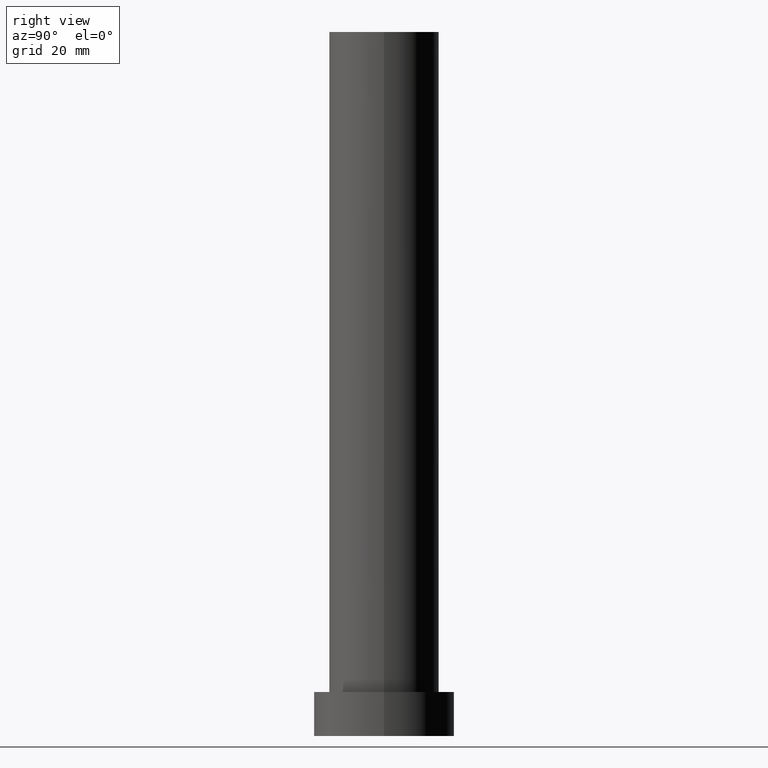
[diagram: clean part render]
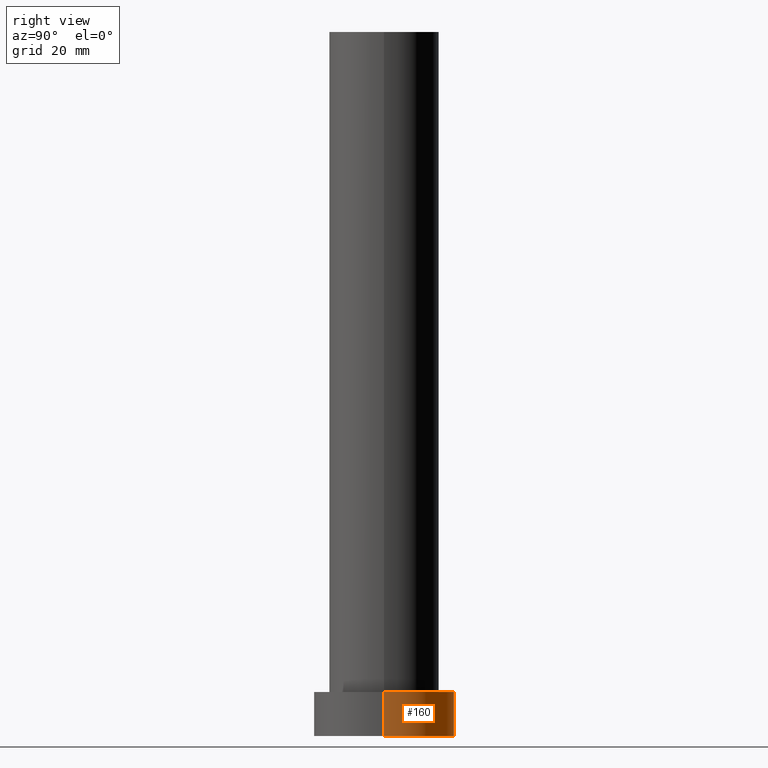
[diagram: same view with one face highlighted and labeled with its STEP entity id]
A machine part, right view. The second image highlights one B-rep face of the part: STEP entity #160.
In plain terms, the highlighted cylindrical surface (partial cylindrical patch) has radius 16 mm, axis along (-0, -0, -1).
Its self-contained STEP definition (entity closure, byte-faithful):
#17 = ORIENTED_EDGE ( 'NONE', *, *, #103, .T. ) ;
#20 = CARTESIAN_POINT ( 'NONE',  ( -16.00000000000000000, 0.000000000000000000, 0.000000000000000000 ) ) ;
#22 = EDGE_CURVE ( 'NONE', #247, #222, #238, .T. ) ;
#24 = CARTESIAN_POINT ( 'NONE',  ( 0.000000000000000000, 0.000000000000000000, 10.00000000000000000 ) ) ;
#25 = LINE ( 'NONE', #175, #108 ) ;
#40 = DIRECTION ( 'NONE',  ( -0.000000000000000000, -0.000000000000000000, -1.000000000000000000 ) ) ;
#56 = EDGE_LOOP ( 'NONE', ( #113, #17, #223, #100 ) ) ;
#59 = AXIS2_PLACEMENT_3D ( 'NONE', #24, #106, #231 ) ;
#65 = LINE ( 'NONE', #194, #214 ) ;
#67 = DIRECTION ( 'NONE',  ( 1.000000000000000000, 0.000000000000000000, 0.000000000000000000 ) ) ;
#68 = CARTESIAN_POINT ( 'NONE',  ( 0.000000000000000000, 0.000000000000000000, 0.000000000000000000 ) ) ;
#79 = DIRECTION ( 'NONE',  ( -0.000000000000000000, -0.000000000000000000, -1.000000000000000000 ) ) ;
#100 = ORIENTED_EDGE ( 'NONE', *, *, #236, .F. ) ;
#103 = EDGE_CURVE ( 'NONE', #247, #219, #65, .T. ) ;
#106 = DIRECTION ( 'NONE',  ( -0.000000000000000000, -0.000000000000000000, -1.000000000000000000 ) ) ;
#108 = VECTOR ( 'NONE', #79, 1000.000000000000000 ) ;
#113 = ORIENTED_EDGE ( 'NONE', *, *, #22, .F. ) ;
#129 = VERTEX_POINT ( 'NONE', #20 ) ;
#136 = DIRECTION ( 'NONE',  ( 0.000000000000000000, 0.000000000000000000, 1.000000000000000000 ) ) ;
#142 = CARTESIAN_POINT ( 'NONE',  ( -16.00000000000000000, 0.000000000000000000, 10.00000000000000000 ) ) ;
#143 = AXIS2_PLACEMENT_3D ( 'NONE', #68, #136, #67 ) ;
#150 = DIRECTION ( 'NONE',  ( 1.000000000000000000, 0.000000000000000000, 0.000000000000000000 ) ) ;
#156 = CARTESIAN_POINT ( 'NONE',  ( 16.00000000000000000, 1.959434878635765131E-15, 10.00000000000000000 ) ) ;
#160 = ADVANCED_FACE ( 'NONE', ( #197 ), #232, .T. ) ;
#167 = CARTESIAN_POINT ( 'NONE',  ( 0.000000000000000000, 0.000000000000000000, 10.00000000000000000 ) ) ;
#175 = CARTESIAN_POINT ( 'NONE',  ( -16.00000000000000000, 0.000000000000000000, 10.00000000000000000 ) ) ;
#182 = AXIS2_PLACEMENT_3D ( 'NONE', #167, #245, #150 ) ;
#194 = CARTESIAN_POINT ( 'NONE',  ( 16.00000000000000000, 1.959434878635765131E-15, 10.00000000000000000 ) ) ;
#195 = CARTESIAN_POINT ( 'NONE',  ( 16.00000000000000000, 1.959434878635765131E-15, 0.000000000000000000 ) ) ;
#197 = FACE_OUTER_BOUND ( 'NONE', #56, .T. ) ;
#214 = VECTOR ( 'NONE', #40, 1000.000000000000000 ) ;
#217 = EDGE_CURVE ( 'NONE', #219, #129, #246, .T. ) ;
#219 = VERTEX_POINT ( 'NONE', #195 ) ;
#222 = VERTEX_POINT ( 'NONE', #142 ) ;
#223 = ORIENTED_EDGE ( 'NONE', *, *, #217, .T. ) ;
#231 = DIRECTION ( 'NONE',  ( -1.000000000000000000, 0.000000000000000000, 0.000000000000000000 ) ) ;
#232 = CYLINDRICAL_SURFACE ( 'NONE', #59, 16.00000000000000000 ) ;
#236 = EDGE_CURVE ( 'NONE', #222, #129, #25, .T. ) ;
#238 = CIRCLE ( 'NONE', #182, 16.00000000000000000 ) ;
#245 = DIRECTION ( 'NONE',  ( 0.000000000000000000, 0.000000000000000000, 1.000000000000000000 ) ) ;
#246 = CIRCLE ( 'NONE', #143, 16.00000000000000000 ) ;
#247 = VERTEX_POINT ( 'NONE', #156 ) ;